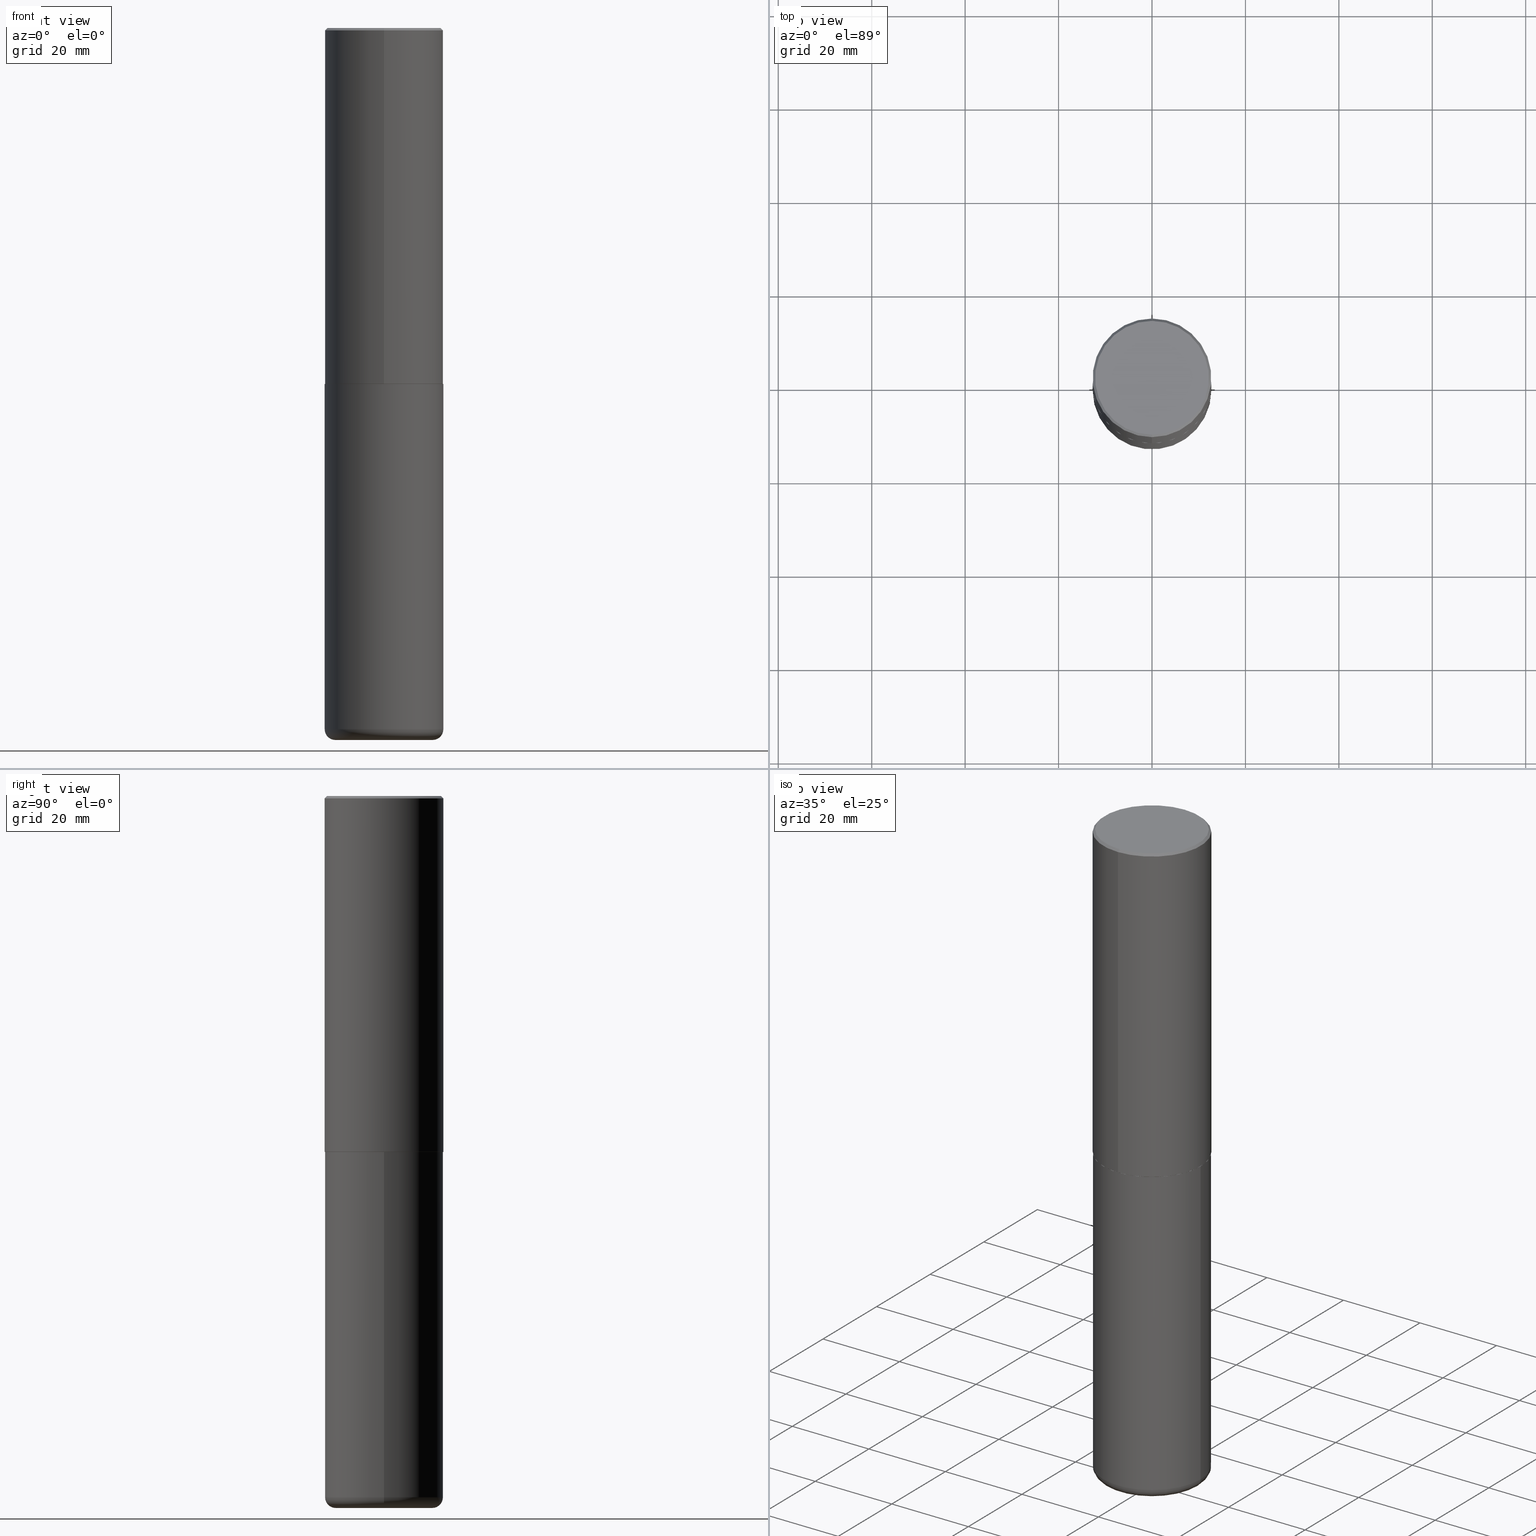
[diagram: canonical four-view strip — front | top / right | iso, engineering-drawing reading convention]
A machine part, canonical four-view strip (front | top / right | iso — engineering-drawing reading convention). The complete STEP part file that produces these views, byte-faithful:
ISO-10303-21;
HEADER;
FILE_DESCRIPTION (( 'STEP AP203' ),
    '1' );
FILE_NAME ('37723.STEP',
    '2024-03-02T09:22:41',
    ( '' ),
    ( '' ),
    'SwSTEP 2.0',
    'SolidWorks 2023',
    '' );
FILE_SCHEMA (( 'CONFIG_CONTROL_DESIGN' ));
ENDSEC;

DATA;
#1 = CONICAL_SURFACE ( 'NONE', #413, 0.4989999999999999991, 0.7853981633976873100 ) ;
#2 = DIRECTION ( 'NONE',  ( -2.445468806185136597E-29, 3.491481338843145583E-15, 1.000000000000000000 ) ) ;
#3 = FACE_OUTER_BOUND ( 'NONE', #283, .T. ) ;
#4 = PRODUCT ( '37723', '37723', '', ( #334 ) ) ;
#5 = APPROVAL_ROLE ( '' ) ;
#6 = DIRECTION ( 'NONE',  ( -6.982962677686265922E-15, -1.000000000000000000, 3.492298717528625990E-15 ) ) ;
#7 = AXIS2_PLACEMENT_3D ( 'NONE', #52, #16, #156 ) ;
#8 = ORIENTED_EDGE ( 'NONE', *, *, #68, .T. ) ;
#9 = CALENDAR_DATE ( 2024, 2, 3 ) ;
#10 = ORIENTED_EDGE ( 'NONE', *, *, #41, .T. ) ;
#11 = CALENDAR_DATE ( 2024, 2, 3 ) ;
#12 = ADVANCED_FACE ( 'NONE', ( #167 ), #294, .F. ) ;
#13 = AXIS2_PLACEMENT_3D ( 'NONE', #360, #412, #134 ) ;
#14 = AXIS2_PLACEMENT_3D ( 'NONE', #65, #407, #202 ) ;
#15 = DIRECTION ( 'NONE',  ( 0.000000000000000000, 0.000000000000000000, 1.000000000000000000 ) ) ;
#16 = DIRECTION ( 'NONE',  ( -2.444898033699712212E-29, 3.492298717528625990E-15, 1.000000000000000000 ) ) ;
#17 = EDGE_LOOP ( 'NONE', ( #33, #362, #44, #53 ) ) ;
#18 = PRODUCT_DEFINITION ( 'UNKNOWN', '', #155, #250 ) ;
#19 = DIRECTION ( 'NONE',  ( -2.445468806185136597E-29, 3.491481338843145583E-15, 1.000000000000000000 ) ) ;
#20 = DIRECTION ( 'NONE',  ( -6.982962677686265922E-15, -1.000000000000000000, 3.492298717528625990E-15 ) ) ;
#21 = DIRECTION ( 'NONE',  ( -2.445468806185136597E-29, 3.491481338843145583E-15, 1.000000000000000000 ) ) ;
#22 = PRODUCT_DEFINITION_SHAPE ( 'NONE', 'NONE',  #18 ) ;
#23 = DIRECTION ( 'NONE',  ( -6.982962677686265922E-15, -1.000000000000000000, 3.492298717528625990E-15 ) ) ;
#24 = ORIENTED_EDGE ( 'NONE', *, *, #41, .F. ) ;
#25 = DIRECTION ( 'NONE',  ( -2.445468806185136597E-29, 3.491481338843145583E-15, 1.000000000000000000 ) ) ;
#26 = VERTEX_POINT ( 'NONE', #236 ) ;
#27 = CARTESIAN_POINT ( 'NONE',  ( 3.552713678800539584E-15, 0.4999999999999898970, -2.999000000000001886 ) ) ;
#28 = FACE_OUTER_BOUND ( 'NONE', #257, .T. ) ;
#29 = ADVANCED_FACE ( 'NONE', ( #28 ), #1, .T. ) ;
#30 = AXIS2_PLACEMENT_3D ( 'NONE', #310, #216, #79 ) ;
#31 = DIRECTION ( 'NONE',  ( -2.444898033699711931E-29, 3.492298717528626385E-15, 1.000000000000000000 ) ) ;
#32 = AXIS2_PLACEMENT_3D ( 'NONE', #72, #2, #242 ) ;
#33 = ORIENTED_EDGE ( 'NONE', *, *, #271, .T. ) ;
#34 = DIRECTION ( 'NONE',  ( -2.445468806185136877E-29, 3.491481338843145188E-15, 1.000000000000000000 ) ) ;
#35 = CARTESIAN_POINT ( 'NONE',  ( -0.4099999999999999756, -1.755880192510247630E-14, -6.000000000000000888 ) ) ;
#36 = ADVANCED_FACE ( 'NONE', ( #171 ), #379, .T. ) ;
#37 = AXIS2_PLACEMENT_3D ( 'NONE', #166, #353, #312 ) ;
#38 = DIRECTION ( 'NONE',  ( -2.444898033699711371E-29, 3.492298717528626385E-15, 1.000000000000000000 ) ) ;
#39 = ADVANCED_BREP_SHAPE_REPRESENTATION ( '37723', ( #93, #104, #113 ), #338 ) ;
#40 =( LENGTH_UNIT ( ) NAMED_UNIT ( * ) SI_UNIT ( $, .METRE. ) );
#41 = EDGE_CURVE ( 'NONE', #268, #410, #316, .T. ) ;
#42 = SECURITY_CLASSIFICATION_LEVEL ( 'unclassified' ) ;
#43 = VECTOR ( 'NONE', #404, 39.37007874015748143 ) ;
#44 = ORIENTED_EDGE ( 'NONE', *, *, #332, .F. ) ;
#45 = CC_DESIGN_DATE_AND_TIME_ASSIGNMENT ( #219, #252, ( #227 ) ) ;
#46 = PLANE ( 'NONE',  #276 ) ;
#47 = ORIENTED_EDGE ( 'NONE', *, *, #173, .F. ) ;
#48 = DIRECTION ( 'NONE',  ( 1.000000000000000000, 0.000000000000000000, 0.000000000000000000 ) ) ;
#49 = ORIENTED_EDGE ( 'NONE', *, *, #315, .F. ) ;
#50 = COORDINATED_UNIVERSAL_TIME_OFFSET ( 5, 0, .BEHIND. ) ;
#51 = EDGE_CURVE ( 'NONE', #268, #26, #109, .T. ) ;
#52 = CARTESIAN_POINT ( 'NONE',  ( 7.332249203065438921E-29, -1.047340385386834930E-14, -2.999000000000000554 ) ) ;
#53 = ORIENTED_EDGE ( 'NONE', *, *, #386, .F. ) ;
#54 = VECTOR ( 'NONE', #243, 39.37007874015748143 ) ;
#55 = CIRCLE ( 'NONE', #261, 0.4799999999999999267 ) ;
#56 = DIRECTION ( 'NONE',  ( 1.000000000000000000, -6.982962677686262766E-15, 0.000000000000000000 ) ) ;
#57 = CARTESIAN_POINT ( 'NONE',  ( -3.430248998885764992E-15, -0.5000000000000001110, -0.01999999999999835937 ) ) ;
#58 = DIRECTION ( 'NONE',  ( -2.444898033699712212E-29, 3.492298717528625990E-15, 1.000000000000000000 ) ) ;
#59 = CARTESIAN_POINT ( 'NONE',  ( 0.4099999999999999756, -2.349766941041436258E-14, -5.910000000000000142 ) ) ;
#60 = ORIENTED_EDGE ( 'NONE', *, *, #100, .T. ) ;
#61 = ADVANCED_FACE ( 'NONE', ( #182 ), #308, .T. ) ;
#62 = AXIS2_PLACEMENT_3D ( 'NONE', #228, #317, #23 ) ;
#63 = CARTESIAN_POINT ( 'NONE',  ( 4.889796067399450837E-31, -6.984597435057287381E-17, -0.02000000000000010797 ) ) ;
#64 = ORIENTED_EDGE ( 'NONE', *, *, #125, .F. ) ;
#65 = CARTESIAN_POINT ( 'NONE',  ( -0.4099999999999999756, -1.772142949594657767E-14, -5.910000000000000142 ) ) ;
#66 = VERTEX_POINT ( 'NONE', #88 ) ;
#67 = DIRECTION ( 'NONE',  ( -6.982962677686265922E-15, -1.000000000000000000, 3.284787166730577015E-15 ) ) ;
#68 = EDGE_CURVE ( 'NONE', #130, #319, #372, .T. ) ;
#69 = VERTEX_POINT ( 'NONE', #335 ) ;
#70 = AXIS2_PLACEMENT_3D ( 'NONE', #391, #110, #67 ) ;
#71 = ORIENTED_EDGE ( 'NONE', *, *, #332, .T. ) ;
#72 = CARTESIAN_POINT ( 'NONE',  ( 1.445272064455415567E-28, -2.063465471256298944E-14, -5.910000000000000142 ) ) ;
#73 = CIRCLE ( 'NONE', #209, 0.5000000000000000000 ) ;
#74 = APPROVAL_ROLE ( '' ) ;
#75 = ORIENTED_EDGE ( 'NONE', *, *, #222, .T. ) ;
#76 = LENGTH_MEASURE_WITH_UNIT ( LENGTH_MEASURE( 0.02539999999999999897 ), #40 );
#77 = ORIENTED_EDGE ( 'NONE', *, *, #238, .T. ) ;
#78 = APPROVAL_DATE_TIME ( #369, #341 ) ;
#79 = DIRECTION ( 'NONE',  ( -6.982962677686265922E-15, -1.000000000000000000, 3.284787166730577015E-15 ) ) ;
#80 = CIRCLE ( 'NONE', #62, 0.4799999999999999267 ) ;
#81 = ORIENTED_EDGE ( 'NONE', *, *, #368, .T. ) ;
#82 = APPROVAL_PERSON_ORGANIZATION ( #367, #278, #74 ) ;
#83 = ORIENTED_EDGE ( 'NONE', *, *, #121, .F. ) ;
#84 = CC_DESIGN_PERSON_AND_ORGANIZATION_ASSIGNMENT ( #394, #85, ( #227 ) ) ;
#85 = PERSON_AND_ORGANIZATION_ROLE ( 'classification_officer' ) ;
#86 = CARTESIAN_POINT ( 'NONE',  ( 7.332249203065438921E-29, -1.047340385386834930E-14, -2.999000000000000554 ) ) ;
#87 = EDGE_LOOP ( 'NONE', ( #408, #358 ) ) ;
#88 = CARTESIAN_POINT ( 'NONE',  ( -0.5000000000000001110, -1.708194103376248851E-14, -5.910000000000000142 ) ) ;
#89 = CIRCLE ( 'NONE', #270, 0.5000000000000002220 ) ;
#90 = APPROVAL_PERSON_ORGANIZATION ( #117, #341, #5 ) ;
#91 = FACE_OUTER_BOUND ( 'NONE', #262, .T. ) ;
#92 = DIRECTION ( 'NONE',  ( 1.000000000000000000, -6.982962677686266711E-15, 4.876176775795935793E-29 ) ) ;
#93 = MANIFOLD_SOLID_BREP ( 'Body-Move/Copy2[1]', #337 ) ;
#94 = FACE_OUTER_BOUND ( 'NONE', #87, .T. ) ;
#95 = EDGE_LOOP ( 'NONE', ( #99, #64, #8, #77 ) ) ;
#96 = CC_DESIGN_PERSON_AND_ORGANIZATION_ASSIGNMENT ( #188, #284, ( #4 ) ) ;
#97 = DIMENSIONAL_EXPONENTS ( 1.000000000000000000, 0.000000000000000000, 0.000000000000000000, 0.000000000000000000, 0.000000000000000000, 0.000000000000000000, 0.000000000000000000 ) ;
#98 = DIRECTION ( 'NONE',  ( -6.982962677686265922E-15, -1.000000000000000000, 3.491643216902136408E-15 ) ) ;
#99 = ORIENTED_EDGE ( 'NONE', *, *, #178, .F. ) ;
#100 = EDGE_CURVE ( 'NONE', #410, #268, #111, .T. ) ;
#101 = CIRCLE ( 'NONE', #14, 0.09000000000000020484 ) ;
#102 = DIRECTION ( 'NONE',  ( -2.445468806185136597E-29, 3.491481338843145583E-15, 1.000000000000000000 ) ) ;
#103 = VERTEX_POINT ( 'NONE', #152 ) ;
#104 = MANIFOLD_SOLID_BREP ( 'Body-Move/Copy2[2]', #269 ) ;
#105 = ADVANCED_FACE ( 'NONE', ( #340 ), #46, .F. ) ;
#106 = CARTESIAN_POINT ( 'NONE',  ( 1.445272064455415567E-28, -2.063465471256298944E-14, -5.910000000000000142 ) ) ;
#107 = DIRECTION ( 'NONE',  ( -2.444898033699712212E-29, 3.492298717528625990E-15, 1.000000000000000000 ) ) ;
#108 = CARTESIAN_POINT ( 'NONE',  ( -0.5000000000000000000, -1.200183568574571118E-14, -3.000000000000000444 ) ) ;
#109 = LINE ( 'NONE', #387, #54 ) ;
#110 = DIRECTION ( 'NONE',  ( -2.444898033699712212E-29, 3.492298717528625990E-15, 1.000000000000000000 ) ) ;
#111 = CIRCLE ( 'NONE', #30, 0.4989999999999999991 ) ;
#112 = CIRCLE ( 'NONE', #175, 0.5000000000000000000 ) ;
#113 = AXIS2_PLACEMENT_3D ( 'NONE', #373, #15, #48 ) ;
#114 = COORDINATED_UNIVERSAL_TIME_OFFSET ( 5, 0, .BEHIND. ) ;
#115 = EDGE_CURVE ( 'NONE', #26, #323, #89, .T. ) ;
#116 = ORIENTED_EDGE ( 'NONE', *, *, #158, .T. ) ;
#117 = PERSON_AND_ORGANIZATION ( #150, #311 ) ;
#118 = CALENDAR_DATE ( 2024, 2, 3 ) ;
#119 = DIRECTION ( 'NONE',  ( 2.444898033699711371E-29, -3.492298717528626385E-15, -1.000000000000000000 ) ) ;
#120 = AXIS2_PLACEMENT_3D ( 'NONE', #59, #235, #201 ) ;
#121 = EDGE_CURVE ( 'NONE', #323, #26, #406, .T. ) ;
#122 = CC_DESIGN_APPROVAL ( #278, ( #227 ) ) ;
#123 = PERSON_AND_ORGANIZATION_ROLE ( 'design_supplier' ) ;
#124 = DIRECTION ( 'NONE',  ( 6.982962677686265922E-15, 1.000000000000000000, -3.492298717528626385E-15 ) ) ;
#125 = EDGE_CURVE ( 'NONE', #130, #376, #55, .T. ) ;
#126 = DIRECTION ( 'NONE',  ( -6.982962677686265922E-15, -1.000000000000000000, 3.491643216902136408E-15 ) ) ;
#127 = ORIENTED_EDGE ( 'NONE', *, *, #349, .T. ) ;
#128 = LOCAL_TIME ( 4, 22, 41.00000000000000000, #50 ) ;
#129 = CARTESIAN_POINT ( 'NONE',  ( 0.000000000000000000, 0.000000000000000000, 0.000000000000000000 ) ) ;
#130 = VERTEX_POINT ( 'NONE', #146 ) ;
#131 = DIRECTION ( 'NONE',  ( 1.000000000000000000, -6.982962677686271444E-15, 0.000000000000000000 ) ) ;
#132 = APPLICATION_CONTEXT ( 'configuration controlled 3d designs of mechanical parts and assemblies' ) ;
#133 = CARTESIAN_POINT ( 'NONE',  ( -3.484498376165373188E-15, -0.4990000000000104352, -2.999999999999998668 ) ) ;
#134 = DIRECTION ( 'NONE',  ( -1.000000000000000000, 6.982962677686265922E-15, -4.876176775795935793E-29 ) ) ;
#135 = LINE ( 'NONE', #230, #366 ) ;
#136 = ORIENTED_EDGE ( 'NONE', *, *, #238, .F. ) ;
#137 = DIRECTION ( 'NONE',  ( -2.445468806185136597E-29, 3.491481338843145583E-15, 1.000000000000000000 ) ) ;
#138 = AXIS2_PLACEMENT_3D ( 'NONE', #272, #291, #98 ) ;
#139 = DIRECTION ( 'NONE',  ( 6.982962677686265922E-15, 1.000000000000000000, -3.491643216902136408E-15 ) ) ;
#140 = LOCAL_TIME ( 4, 22, 41.00000000000000000, #154 ) ;
#141 = CARTESIAN_POINT ( 'NONE',  ( 4.889796067399450837E-31, -6.984597435057287381E-17, -0.02000000000000010797 ) ) ;
#142 = ADVANCED_FACE ( 'NONE', ( #94 ), #295, .T. ) ;
#143 = FACE_OUTER_BOUND ( 'NONE', #336, .T. ) ;
#144 = EDGE_CURVE ( 'NONE', #153, #69, #330, .T. ) ;
#145 = APPROVAL_DATE_TIME ( #339, #258 ) ;
#146 = CARTESIAN_POINT ( 'NONE',  ( 3.421651712066270057E-15, 0.4799999999999999267, -1.573466742882299844E-15 ) ) ;
#147 = AXIS2_PLACEMENT_3D ( 'NONE', #409, #25, #384 ) ;
#148 = APPLICATION_CONTEXT ( 'configuration controlled 3d designs of mechanical parts and assemblies' ) ;
#149 = CARTESIAN_POINT ( 'NONE',  ( 0.000000000000000000, 0.000000000000000000, 0.000000000000000000 ) ) ;
#150 = PERSON ( 'UNSPECIFIED', 'UNSPECIFIED', 'UNSPECIFIED', ('UNSPECIFIED'), ('UNSPECIFIED'), ('UNSPECIFIED') ) ;
#151 = ORIENTED_EDGE ( 'NONE', *, *, #255, .F. ) ;
#152 = CARTESIAN_POINT ( 'NONE',  ( 0.5000000000000000000, -1.396592535537257129E-14, -3.000000000000000444 ) ) ;
#153 = VERTEX_POINT ( 'NONE', #380 ) ;
#154 = COORDINATED_UNIVERSAL_TIME_OFFSET ( 5, 0, .BEHIND. ) ;
#155 = PRODUCT_DEFINITION_FORMATION_WITH_SPECIFIED_SOURCE ( 'ANY', '', #4, .NOT_KNOWN. ) ;
#156 = DIRECTION ( 'NONE',  ( -6.982962677686266711E-15, -1.000000000000000000, 3.278217592397114284E-15 ) ) ;
#157 = ORIENTED_EDGE ( 'NONE', *, *, #144, .T. ) ;
#158 = EDGE_CURVE ( 'NONE', #153, #370, #253, .T. ) ;
#159 = DIRECTION ( 'NONE',  ( 1.000000000000000000, -6.982962677686266711E-15, 0.000000000000000000 ) ) ;
#160 = EDGE_LOOP ( 'NONE', ( #71, #127 ) ) ;
#161 = DIRECTION ( 'NONE',  ( 5.024295867789263036E-15, 0.7071067811867189912, 0.7071067811863760433 ) ) ;
#162 = ORIENTED_EDGE ( 'NONE', *, *, #51, .F. ) ;
#163 = VECTOR ( 'NONE', #31, 39.37007874015748143 ) ;
#164 = DIRECTION ( 'NONE',  ( -2.445468806185136597E-29, 3.491481338843145583E-15, 1.000000000000000000 ) ) ;
#165 = ORIENTED_EDGE ( 'NONE', *, *, #144, .F. ) ;
#166 = CARTESIAN_POINT ( 'NONE',  ( 1.467281283711081958E-28, -2.094888803305887271E-14, -6.000000000000000888 ) ) ;
#167 = FACE_OUTER_BOUND ( 'NONE', #160, .T. ) ;
#168 = CARTESIAN_POINT ( 'NONE',  ( 7.336406418555409790E-29, -1.047444401652943635E-14, -3.000000000000000444 ) ) ;
#169 = ORIENTED_EDGE ( 'NONE', *, *, #115, .T. ) ;
#170 = AXIS2_PLACEMENT_3D ( 'NONE', #129, #197, #20 ) ;
#171 = FACE_OUTER_BOUND ( 'NONE', #17, .T. ) ;
#172 = FACE_OUTER_BOUND ( 'NONE', #288, .T. ) ;
#173 = EDGE_CURVE ( 'NONE', #26, #231, #135, .T. ) ;
#174 = DIRECTION ( 'NONE',  ( 2.444898033699712212E-29, -3.492298717528625990E-15, -1.000000000000000000 ) ) ;
#175 = AXIS2_PLACEMENT_3D ( 'NONE', #63, #382, #126 ) ;
#176 = CARTESIAN_POINT ( 'NONE',  ( 7.334694101099137475E-29, -1.047689615258587837E-14, -3.000000000000000444 ) ) ;
#177 = CC_DESIGN_APPROVAL ( #258, ( #155 ) ) ;
#178 = EDGE_CURVE ( 'NONE', #376, #231, #287, .T. ) ;
#179 = DIRECTION ( 'NONE',  ( -6.982962677686265922E-15, -1.000000000000000000, 3.492298717528626385E-15 ) ) ;
#180 = PRODUCT_RELATED_PRODUCT_CATEGORY ( 'detail', '', ( #4 ) ) ;
#181 =( CONVERSION_BASED_UNIT ( 'INCH', #76 ) LENGTH_UNIT ( ) NAMED_UNIT ( #97 ) );
#182 = FACE_OUTER_BOUND ( 'NONE', #381, .T. ) ;
#183 = DATE_TIME_ROLE ( 'creation_date' ) ;
#184 = ORIENTED_EDGE ( 'NONE', *, *, #178, .T. ) ;
#185 = EDGE_CURVE ( 'NONE', #370, #153, #388, .T. ) ;
#186 = APPLICATION_PROTOCOL_DEFINITION ( 'international standard', 'config_control_design', 1994, #132 ) ;
#187 = DIRECTION ( 'NONE',  ( -2.444898033699712212E-29, 3.492298717528625990E-15, 1.000000000000000000 ) ) ;
#188 = PERSON_AND_ORGANIZATION ( #150, #311 ) ;
#189 = CC_DESIGN_DATE_AND_TIME_ASSIGNMENT ( #375, #183, ( #18 ) ) ;
#190 = ORIENTED_EDGE ( 'NONE', *, *, #315, .T. ) ;
#191 =( NAMED_UNIT ( * ) SI_UNIT ( $, .STERADIAN. ) SOLID_ANGLE_UNIT ( ) );
#192 = EDGE_CURVE ( 'NONE', #376, #130, #80, .T. ) ;
#193 = AXIS2_PLACEMENT_3D ( 'NONE', #141, #363, #299 ) ;
#194 = APPROVAL_PERSON_ORGANIZATION ( #397, #258, #214 ) ;
#195 = DIRECTION ( 'NONE',  ( -2.445468806185136597E-29, 3.491481338843145583E-15, 1.000000000000000000 ) ) ;
#196 = ORIENTED_EDGE ( 'NONE', *, *, #173, .T. ) ;
#197 = DIRECTION ( 'NONE',  ( -2.444898033699712212E-29, 3.492298717528625990E-15, 1.000000000000000000 ) ) ;
#198 = ORIENTED_EDGE ( 'NONE', *, *, #417, .F. ) ;
#199 = CARTESIAN_POINT ( 'NONE',  ( -3.430248998885764992E-15, -0.5000000000000001110, -0.01999999999999835937 ) ) ;
#200 = ORIENTED_EDGE ( 'NONE', *, *, #185, .T. ) ;
#201 = DIRECTION ( 'NONE',  ( 1.000000000000000000, -6.982962677686252511E-15, 0.000000000000000000 ) ) ;
#202 = DIRECTION ( 'NONE',  ( -1.000000000000000000, 7.105427357600996337E-15, 0.000000000000000000 ) ) ;
#203 = ORIENTED_EDGE ( 'NONE', *, *, #255, .T. ) ;
#204 = CARTESIAN_POINT ( 'NONE',  ( 3.549160965121773789E-15, 0.4989999999999895630, -3.000000000000001776 ) ) ;
#205 = VECTOR ( 'NONE', #347, 39.37007874015748143 ) ;
#206 = CONICAL_SURFACE ( 'NONE', #70, 0.4989999999999999991, 0.7853981633976873100 ) ;
#207 = CC_DESIGN_SECURITY_CLASSIFICATION ( #227, ( #155 ) ) ;
#208 = CARTESIAN_POINT ( 'NONE',  ( 0.5000000000000000000, -3.491481338843133355E-15, 2.438088387897967896E-29 ) ) ;
#209 = AXIS2_PLACEMENT_3D ( 'NONE', #390, #137, #329 ) ;
#210 = LOCAL_TIME ( 4, 22, 41.00000000000000000, #211 ) ;
#211 = COORDINATED_UNIVERSAL_TIME_OFFSET ( 5, 0, .BEHIND. ) ;
#212 = APPROVAL_STATUS ( 'not_yet_approved' ) ;
#213 = ORIENTED_EDGE ( 'NONE', *, *, #115, .F. ) ;
#214 = APPROVAL_ROLE ( '' ) ;
#215 = AXIS2_PLACEMENT_3D ( 'NONE', #168, #195, #159 ) ;
#216 = DIRECTION ( 'NONE',  ( -2.444898033699712212E-29, 3.492298717528625990E-15, 1.000000000000000000 ) ) ;
#217 = ORIENTED_EDGE ( 'NONE', *, *, #68, .F. ) ;
#218 = ORIENTED_EDGE ( 'NONE', *, *, #368, .F. ) ;
#219 = DATE_AND_TIME ( #118, #348 ) ;
#220 = DIRECTION ( 'NONE',  ( -2.444898033699712212E-29, 3.492298717528625990E-15, 1.000000000000000000 ) ) ;
#221 = ORIENTED_EDGE ( 'NONE', *, *, #222, .F. ) ;
#222 = EDGE_CURVE ( 'NONE', #410, #323, #259, .T. ) ;
#223 = DIRECTION ( 'NONE',  ( -6.982962677686265922E-15, -1.000000000000000000, 3.492298717528625990E-15 ) ) ;
#224 = AXIS2_PLACEMENT_3D ( 'NONE', #149, #187, #6 ) ;
#225 = AXIS2_PLACEMENT_3D ( 'NONE', #279, #174, #139 ) ;
#226 = EDGE_LOOP ( 'NONE', ( #325, #342 ) ) ;
#227 = SECURITY_CLASSIFICATION ( '', '', #42 ) ;
#228 = CARTESIAN_POINT ( 'NONE',  ( -2.514251026725007597E-45, 3.591362713352002573E-31, 1.028366415314403880E-16 ) ) ;
#229 = CARTESIAN_POINT ( 'NONE',  ( 7.334694101099137475E-29, -1.047689615258587837E-14, -3.000000000000000444 ) ) ;
#230 = CARTESIAN_POINT ( 'NONE',  ( -3.491481338843133750E-15, -0.5000000000000001110, 1.746149358764313390E-15 ) ) ;
#231 = VERTEX_POINT ( 'NONE', #57 ) ;
#232 = CARTESIAN_POINT ( 'NONE',  ( -0.5000000000000000000, 3.552713678800500929E-15, -2.459467545127452891E-29 ) ) ;
#233 = ORIENTED_EDGE ( 'NONE', *, *, #192, .F. ) ;
#234 = AXIS2_PLACEMENT_3D ( 'NONE', #414, #164, #131 ) ;
#235 = DIRECTION ( 'NONE',  ( -6.982962677686266711E-15, -1.000000000000000000, 3.491481338843145583E-15 ) ) ;
#236 = CARTESIAN_POINT ( 'NONE',  ( -3.491481338843061569E-15, -0.5000000000000107692, -2.998999999999998778 ) ) ;
#237 = DIRECTION ( 'NONE',  ( 1.000000000000000000, -6.982962677686266711E-15, 4.876176775795935793E-29 ) ) ;
#238 = EDGE_CURVE ( 'NONE', #319, #231, #392, .T. ) ;
#239 = DIRECTION ( 'NONE',  ( -6.982962677686265922E-15, -1.000000000000000000, 3.284787166730577015E-15 ) ) ;
#240 = TOROIDAL_SURFACE ( 'NONE', #32, 0.4099999999999999756, 0.09000000000000020484 ) ;
#241 = DIRECTION ( 'NONE',  ( -2.445468806185136597E-29, 3.491481338843145583E-15, 1.000000000000000000 ) ) ;
#242 = DIRECTION ( 'NONE',  ( 1.000000000000000000, -6.982962677686268288E-15, 4.883557194083113462E-29 ) ) ;
#243 = DIRECTION ( 'NONE',  ( -4.937700262165728178E-15, -0.7071067811867141062, 0.7071067811863809283 ) ) ;
#244 = AXIS2_PLACEMENT_3D ( 'NONE', #405, #21, #92 ) ;
#245 = TOROIDAL_SURFACE ( 'NONE', #147, 0.4099999999999999756, 0.09000000000000020484 ) ;
#246 = PERSON_AND_ORGANIZATION_ROLE ( 'creator' ) ;
#247 = APPROVAL_STATUS ( 'not_yet_approved' ) ;
#248 = APPLICATION_PROTOCOL_DEFINITION ( 'international standard', 'config_control_design', 1994, #148 ) ;
#249 = APPROVAL_DATE_TIME ( #286, #278 ) ;
#250 = DESIGN_CONTEXT ( 'detailed design', #132, 'design' ) ;
#251 = ADVANCED_FACE ( 'NONE', ( #359 ), #245, .T. ) ;
#252 = DATE_TIME_ROLE ( 'classification_date' ) ;
#253 = CIRCLE ( 'NONE', #234, 0.4099999999999999756 ) ;
#254 = ORIENTED_EDGE ( 'NONE', *, *, #121, .T. ) ;
#255 = EDGE_CURVE ( 'NONE', #231, #319, #112, .T. ) ;
#256 = PERSON_AND_ORGANIZATION_ROLE ( 'creator' ) ;
#257 = EDGE_LOOP ( 'NONE', ( #10, #75, #213, #162 ) ) ;
#258 = APPROVAL ( #212, 'UNSPECIFIED' ) ;
#259 = LINE ( 'NONE', #320, #296 ) ;
#260 = AXIS2_PLACEMENT_3D ( 'NONE', #313, #264, #351 ) ;
#261 = AXIS2_PLACEMENT_3D ( 'NONE', #285, #402, #223 ) ;
#262 = EDGE_LOOP ( 'NONE', ( #169, #306, #151, #47 ) ) ;
#263 = DIRECTION ( 'NONE',  ( -2.444898033699711931E-29, 3.492298717528626385E-15, 1.000000000000000000 ) ) ;
#264 = DIRECTION ( 'NONE',  ( -2.445468806185136597E-29, 3.491481338843145583E-15, 1.000000000000000000 ) ) ;
#265 = ORIENTED_EDGE ( 'NONE', *, *, #386, .T. ) ;
#266 = CC_DESIGN_PERSON_AND_ORGANIZATION_ASSIGNMENT ( #282, #256, ( #18 ) ) ;
#267 = CYLINDRICAL_SURFACE ( 'NONE', #377, 0.5000000000000000000 ) ;
#268 = VERTEX_POINT ( 'NONE', #133 ) ;
#269 = CLOSED_SHELL ( 'NONE', ( #29, #302, #374, #389, #61, #403, #400, #105 ) ) ;
#270 = AXIS2_PLACEMENT_3D ( 'NONE', #86, #220, #344 ) ;
#271 = EDGE_CURVE ( 'NONE', #69, #66, #396, .T. ) ;
#272 = CARTESIAN_POINT ( 'NONE',  ( 4.889796067399450837E-31, -6.984597435057287381E-17, -0.02000000000000010797 ) ) ;
#273 = ORIENTED_EDGE ( 'NONE', *, *, #349, .F. ) ;
#274 = CC_DESIGN_PERSON_AND_ORGANIZATION_ASSIGNMENT ( #343, #246, ( #155 ) ) ;
#275 = LINE ( 'NONE', #208, #300 ) ;
#276 = AXIS2_PLACEMENT_3D ( 'NONE', #305, #119, #124 ) ;
#277 = FACE_OUTER_BOUND ( 'NONE', #350, .T. ) ;
#278 = APPROVAL ( #247, 'UNSPECIFIED' ) ;
#279 = CARTESIAN_POINT ( 'NONE',  ( 4.889796067399450837E-31, -6.984597435057287381E-17, -0.02000000000000010797 ) ) ;
#280 = AXIS2_PLACEMENT_3D ( 'NONE', #176, #38, #179 ) ;
#281 = COORDINATED_UNIVERSAL_TIME_OFFSET ( 5, 0, .BEHIND. ) ;
#282 = PERSON_AND_ORGANIZATION ( #150, #311 ) ;
#283 = EDGE_LOOP ( 'NONE', ( #221, #60, #292, #83 ) ) ;
#284 = PERSON_AND_ORGANIZATION_ROLE ( 'design_owner' ) ;
#285 = CARTESIAN_POINT ( 'NONE',  ( -2.514251026725007597E-45, 3.591362713352002573E-31, 1.028366415314403880E-16 ) ) ;
#286 = DATE_AND_TIME ( #333, #210 ) ;
#287 = LINE ( 'NONE', #199, #357 ) ;
#288 = EDGE_LOOP ( 'NONE', ( #233, #184, #203, #217 ) ) ;
#289 = SHAPE_DEFINITION_REPRESENTATION ( #22, #39 ) ;
#290 = CYLINDRICAL_SURFACE ( 'NONE', #170, 0.5000000000000001110 ) ;
#291 = DIRECTION ( 'NONE',  ( -2.444898033699712212E-29, 3.492298717528625990E-15, 1.000000000000000000 ) ) ;
#292 = ORIENTED_EDGE ( 'NONE', *, *, #51, .T. ) ;
#293 = FACE_OUTER_BOUND ( 'NONE', #321, .T. ) ;
#294 = PLANE ( 'NONE',  #13 ) ;
#295 = PLANE ( 'NONE',  #37 ) ;
#296 = VECTOR ( 'NONE', #161, 39.37007874015748143 ) ;
#297 = EDGE_CURVE ( 'NONE', #66, #345, #378, .T. ) ;
#298 = LINE ( 'NONE', #324, #163 ) ;
#299 = DIRECTION ( 'NONE',  ( 6.982962677686265922E-15, 1.000000000000000000, -3.491643216902136408E-15 ) ) ;
#300 = VECTOR ( 'NONE', #34, 39.37007874015748143 ) ;
#301 = CC_DESIGN_APPROVAL ( #341, ( #18 ) ) ;
#302 = ADVANCED_FACE ( 'NONE', ( #91 ), #290, .T. ) ;
#303 = ADVANCED_FACE ( 'NONE', ( #293 ), #267, .T. ) ;
#304 =( NAMED_UNIT ( * ) PLANE_ANGLE_UNIT ( ) SI_UNIT ( $, .RADIAN. ) );
#305 = CARTESIAN_POINT ( 'NONE',  ( 3.351822085289407153E-15, 0.4799999999999999267, -1.624885063648019971E-15 ) ) ;
#306 = ORIENTED_EDGE ( 'NONE', *, *, #417, .T. ) ;
#307 = CC_DESIGN_PERSON_AND_ORGANIZATION_ASSIGNMENT ( #371, #123, ( #155 ) ) ;
#308 = CYLINDRICAL_SURFACE ( 'NONE', #224, 0.5000000000000001110 ) ;
#309 = CONICAL_SURFACE ( 'NONE', #193, 0.5000000000000000000, 0.7853981633974446153 ) ;
#310 = CARTESIAN_POINT ( 'NONE',  ( 7.334694101099137475E-29, -1.047689615258587837E-14, -3.000000000000000444 ) ) ;
#311 = ORGANIZATION ( 'UNSPECIFIED', 'UNSPECIFIED', '' ) ;
#312 = DIRECTION ( 'NONE',  ( -1.000000000000000000, 6.982962677686265922E-15, -4.876176775795935793E-29 ) ) ;
#313 = CARTESIAN_POINT ( 'NONE',  ( 1.467281283711081958E-28, -2.094888803305887271E-14, -6.000000000000000888 ) ) ;
#314 = DIRECTION ( 'NONE',  ( -6.982962677686265922E-15, -1.000000000000000000, 3.284787166730577015E-15 ) ) ;
#315 = EDGE_CURVE ( 'NONE', #370, #66, #101, .T. ) ;
#316 = CIRCLE ( 'NONE', #355, 0.4989999999999999991 ) ;
#317 = DIRECTION ( 'NONE',  ( -2.444898033699712212E-29, 3.492298717528625990E-15, 1.000000000000000000 ) ) ;
#318 = CONICAL_SURFACE ( 'NONE', #225, 0.5000000000000000000, 0.7853981633974446153 ) ;
#319 = VERTEX_POINT ( 'NONE', #322 ) ;
#320 = CARTESIAN_POINT ( 'NONE',  ( 3.545608251442972496E-15, 0.4989999999999895630, -3.000000000000001776 ) ) ;
#321 = EDGE_LOOP ( 'NONE', ( #352, #81, #265, #273 ) ) ;
#322 = CARTESIAN_POINT ( 'NONE',  ( 3.491481338843133355E-15, 0.4999999999999999445, -0.02000000000000185310 ) ) ;
#323 = VERTEX_POINT ( 'NONE', #27 ) ;
#324 = CARTESIAN_POINT ( 'NONE',  ( 3.552713678800501718E-15, 0.5000000000000001110, -1.746149358764313390E-15 ) ) ;
#325 = ORIENTED_EDGE ( 'NONE', *, *, #125, .T. ) ;
#326 = CIRCLE ( 'NONE', #383, 0.5000000000000000000 ) ;
#327 = LOCAL_TIME ( 4, 22, 41.00000000000000000, #281 ) ;
#328 = ORIENTED_EDGE ( 'NONE', *, *, #100, .F. ) ;
#329 = DIRECTION ( 'NONE',  ( 1.000000000000000000, -6.982962677686262766E-15, 0.000000000000000000 ) ) ;
#330 = CIRCLE ( 'NONE', #120, 0.09000000000000020484 ) ;
#331 = DIRECTION ( 'NONE',  ( 1.000000000000000000, -6.982962677686266711E-15, 0.000000000000000000 ) ) ;
#332 = EDGE_CURVE ( 'NONE', #103, #345, #346, .T. ) ;
#333 = CALENDAR_DATE ( 2024, 2, 3 ) ;
#334 = MECHANICAL_CONTEXT ( 'NONE', #148, 'mechanical' ) ;
#335 = CARTESIAN_POINT ( 'NONE',  ( 0.5000000000000001110, -2.412613605140612280E-14, -5.910000000000000142 ) ) ;
#336 = EDGE_LOOP ( 'NONE', ( #24, #328 ) ) ;
#337 = CLOSED_SHELL ( 'NONE', ( #36, #395, #12, #303, #251, #142 ) ) ;
#338 =( GEOMETRIC_REPRESENTATION_CONTEXT ( 3 ) GLOBAL_UNCERTAINTY_ASSIGNED_CONTEXT ( ( #398 ) ) GLOBAL_UNIT_ASSIGNED_CONTEXT ( ( #181, #304, #191 ) ) REPRESENTATION_CONTEXT ( 'NONE', 'WORKASPACE' ) );
#339 = DATE_AND_TIME ( #393, #327 ) ;
#340 = FACE_OUTER_BOUND ( 'NONE', #226, .T. ) ;
#341 = APPROVAL ( #401, 'UNSPECIFIED' ) ;
#342 = ORIENTED_EDGE ( 'NONE', *, *, #192, .T. ) ;
#343 = PERSON_AND_ORGANIZATION ( #150, #311 ) ;
#344 = DIRECTION ( 'NONE',  ( -6.982962677686266711E-15, -1.000000000000000000, 3.278217592397114284E-15 ) ) ;
#345 = VERTEX_POINT ( 'NONE', #108 ) ;
#346 = CIRCLE ( 'NONE', #215, 0.5000000000000000000 ) ;
#347 = DIRECTION ( 'NONE',  ( 4.937700262164529898E-15, 0.7071067811865424657, -0.7071067811865525687 ) ) ;
#348 = LOCAL_TIME ( 4, 22, 41.00000000000000000, #114 ) ;
#349 = EDGE_CURVE ( 'NONE', #345, #103, #326, .T. ) ;
#350 = EDGE_LOOP ( 'NONE', ( #116, #190, #354, #165 ) ) ;
#351 = DIRECTION ( 'NONE',  ( 1.000000000000000000, -6.982962677686271444E-15, 0.000000000000000000 ) ) ;
#352 = ORIENTED_EDGE ( 'NONE', *, *, #297, .F. ) ;
#353 = DIRECTION ( 'NONE',  ( 2.438088387897960049E-29, -3.491481338843145188E-15, -1.000000000000000000 ) ) ;
#354 = ORIENTED_EDGE ( 'NONE', *, *, #271, .F. ) ;
#355 = AXIS2_PLACEMENT_3D ( 'NONE', #229, #58, #314 ) ;
#356 = DIRECTION ( 'NONE',  ( -4.851104656540946131E-15, -0.7071067811865473507, -0.7071067811865476838 ) ) ;
#357 = VECTOR ( 'NONE', #356, 39.37007874015748143 ) ;
#358 = ORIENTED_EDGE ( 'NONE', *, *, #185, .F. ) ;
#359 = FACE_OUTER_BOUND ( 'NONE', #416, .T. ) ;
#360 = CARTESIAN_POINT ( 'NONE',  ( 7.336406418555409790E-29, -1.047444401652943635E-14, -3.000000000000000444 ) ) ;
#361 = FACE_OUTER_BOUND ( 'NONE', #95, .T. ) ;
#362 = ORIENTED_EDGE ( 'NONE', *, *, #297, .T. ) ;
#363 = DIRECTION ( 'NONE',  ( 2.444898033699712212E-29, -3.492298717528625990E-15, -1.000000000000000000 ) ) ;
#364 = PLANE ( 'NONE',  #280 ) ;
#365 = CARTESIAN_POINT ( 'NONE',  ( -3.361644018908049661E-15, -0.4799999999999999267, 1.779140025945180744E-15 ) ) ;
#366 = VECTOR ( 'NONE', #263, 39.37007874015748143 ) ;
#367 = PERSON_AND_ORGANIZATION ( #150, #311 ) ;
#368 = EDGE_CURVE ( 'NONE', #66, #69, #73, .T. ) ;
#369 = DATE_AND_TIME ( #11, #140 ) ;
#370 = VERTEX_POINT ( 'NONE', #35 ) ;
#371 = PERSON_AND_ORGANIZATION ( #150, #311 ) ;
#372 = LINE ( 'NONE', #399, #205 ) ;
#373 = CARTESIAN_POINT ( 'NONE',  ( 0.000000000000000000, 0.000000000000000000, 0.000000000000000000 ) ) ;
#374 = ADVANCED_FACE ( 'NONE', ( #172 ), #309, .T. ) ;
#375 = DATE_AND_TIME ( #9, #128 ) ;
#376 = VERTEX_POINT ( 'NONE', #365 ) ;
#377 = AXIS2_PLACEMENT_3D ( 'NONE', #411, #102, #237 ) ;
#378 = LINE ( 'NONE', #232, #43 ) ;
#379 = CYLINDRICAL_SURFACE ( 'NONE', #244, 0.5000000000000000000 ) ;
#380 = CARTESIAN_POINT ( 'NONE',  ( 0.4099999999999999756, -2.381190273091024584E-14, -6.000000000000000888 ) ) ;
#381 = EDGE_LOOP ( 'NONE', ( #198, #254, #196, #136 ) ) ;
#382 = DIRECTION ( 'NONE',  ( -2.444898033699712212E-29, 3.492298717528625990E-15, 1.000000000000000000 ) ) ;
#383 = AXIS2_PLACEMENT_3D ( 'NONE', #418, #241, #331 ) ;
#384 = DIRECTION ( 'NONE',  ( 1.000000000000000000, -6.982962677686268288E-15, 4.883557194083113462E-29 ) ) ;
#385 = CARTESIAN_POINT ( 'NONE',  ( 7.334694101099137475E-29, -1.047689615258587837E-14, -3.000000000000000444 ) ) ;
#386 = EDGE_CURVE ( 'NONE', #69, #103, #275, .T. ) ;
#387 = CARTESIAN_POINT ( 'NONE',  ( -3.484498376165373188E-15, -0.4990000000000104352, -2.999999999999998668 ) ) ;
#388 = CIRCLE ( 'NONE', #260, 0.4099999999999999756 ) ;
#389 = ADVANCED_FACE ( 'NONE', ( #361 ), #318, .T. ) ;
#390 = CARTESIAN_POINT ( 'NONE',  ( 1.445272064455415567E-28, -2.063465471256298944E-14, -5.910000000000000142 ) ) ;
#391 = CARTESIAN_POINT ( 'NONE',  ( 7.334694101099137475E-29, -1.047689615258587837E-14, -3.000000000000000444 ) ) ;
#392 = CIRCLE ( 'NONE', #138, 0.5000000000000000000 ) ;
#393 = CALENDAR_DATE ( 2024, 2, 3 ) ;
#394 = PERSON_AND_ORGANIZATION ( #150, #311 ) ;
#395 = ADVANCED_FACE ( 'NONE', ( #277 ), #240, .T. ) ;
#396 = CIRCLE ( 'NONE', #415, 0.5000000000000000000 ) ;
#397 = PERSON_AND_ORGANIZATION ( #150, #311 ) ;
#398 = UNCERTAINTY_MEASURE_WITH_UNIT (LENGTH_MEASURE( 1.000000000000000082E-05 ), #181, 'distance_accuracy_value', 'NONE');
#399 = CARTESIAN_POINT ( 'NONE',  ( 3.491481338843133355E-15, 0.4999999999999999445, -0.02000000000000185310 ) ) ;
#400 = ADVANCED_FACE ( 'NONE', ( #143 ), #364, .F. ) ;
#401 = APPROVAL_STATUS ( 'not_yet_approved' ) ;
#402 = DIRECTION ( 'NONE',  ( -2.444898033699712212E-29, 3.492298717528625990E-15, 1.000000000000000000 ) ) ;
#403 = ADVANCED_FACE ( 'NONE', ( #3 ), #206, .T. ) ;
#404 = DIRECTION ( 'NONE',  ( -2.445468806185136877E-29, 3.491481338843145188E-15, 1.000000000000000000 ) ) ;
#405 = CARTESIAN_POINT ( 'NONE',  ( 0.000000000000000000, 0.000000000000000000, 0.000000000000000000 ) ) ;
#406 = CIRCLE ( 'NONE', #7, 0.5000000000000002220 ) ;
#407 = DIRECTION ( 'NONE',  ( 7.105427357601001859E-15, 1.000000000000000000, -3.491481338843145583E-15 ) ) ;
#408 = ORIENTED_EDGE ( 'NONE', *, *, #158, .F. ) ;
#409 = CARTESIAN_POINT ( 'NONE',  ( 1.445272064455415567E-28, -2.063465471256298944E-14, -5.910000000000000142 ) ) ;
#410 = VERTEX_POINT ( 'NONE', #204 ) ;
#411 = CARTESIAN_POINT ( 'NONE',  ( 0.000000000000000000, 0.000000000000000000, 0.000000000000000000 ) ) ;
#412 = DIRECTION ( 'NONE',  ( 2.438088387897960049E-29, -3.491481338843145188E-15, -1.000000000000000000 ) ) ;
#413 = AXIS2_PLACEMENT_3D ( 'NONE', #385, #107, #239 ) ;
#414 = CARTESIAN_POINT ( 'NONE',  ( 1.467281283711081958E-28, -2.094888803305887271E-14, -6.000000000000000888 ) ) ;
#415 = AXIS2_PLACEMENT_3D ( 'NONE', #106, #19, #56 ) ;
#416 = EDGE_LOOP ( 'NONE', ( #49, #200, #157, #218 ) ) ;
#417 = EDGE_CURVE ( 'NONE', #323, #319, #298, .T. ) ;
#418 = CARTESIAN_POINT ( 'NONE',  ( 7.336406418555409790E-29, -1.047444401652943635E-14, -3.000000000000000444 ) ) ;
ENDSEC;
END-ISO-10303-21;
